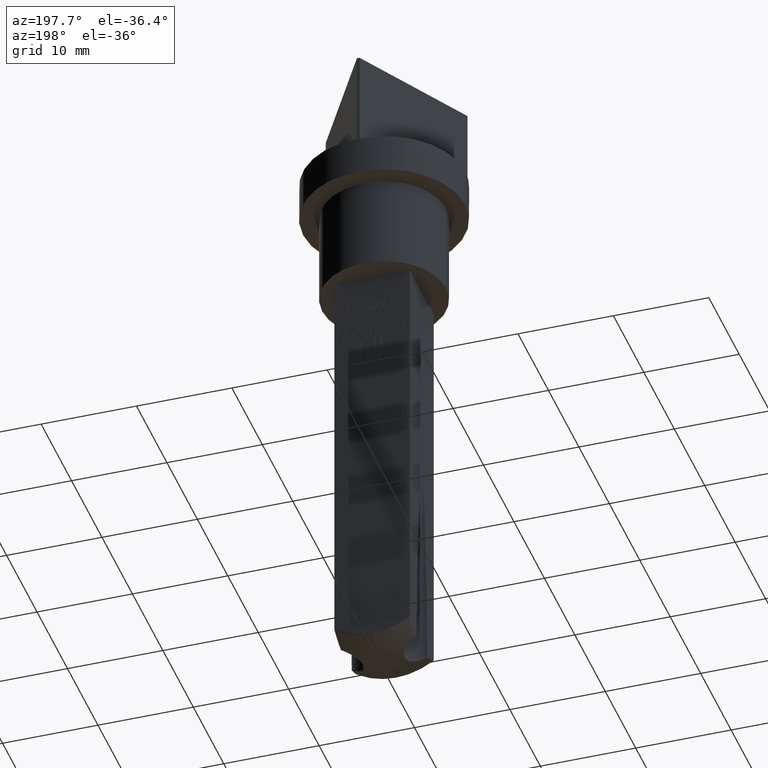
[diagram: clean part render]
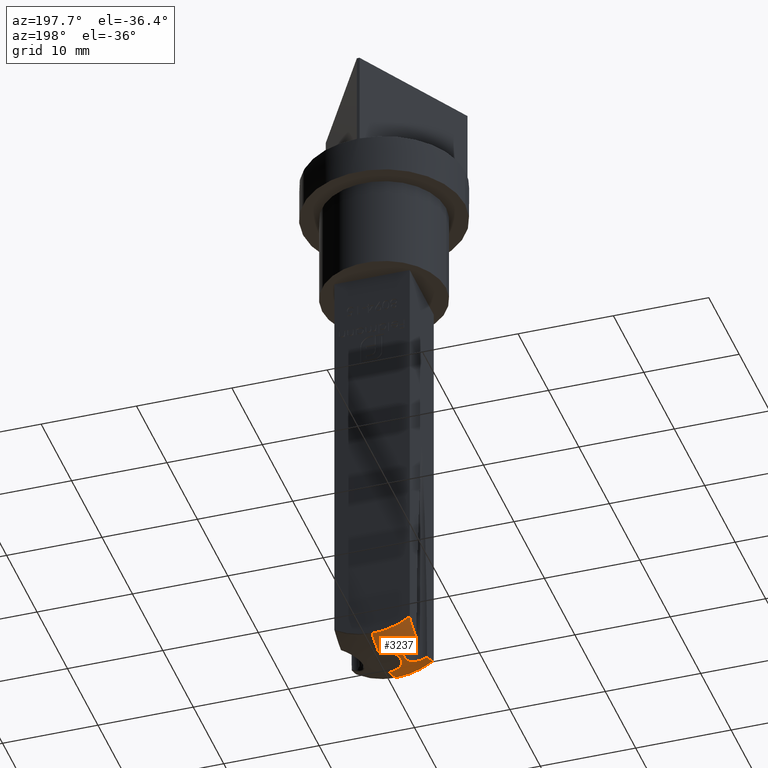
[diagram: same view with one face highlighted and labeled with its STEP entity id]
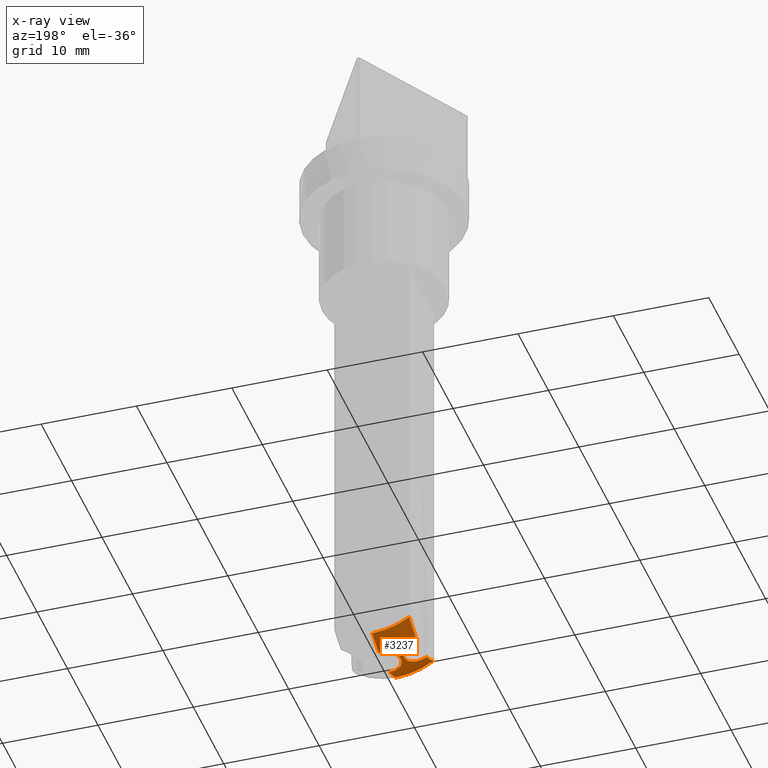
[diagram: x-ray of the same camera — body ghosted, the highlighted face saturated]
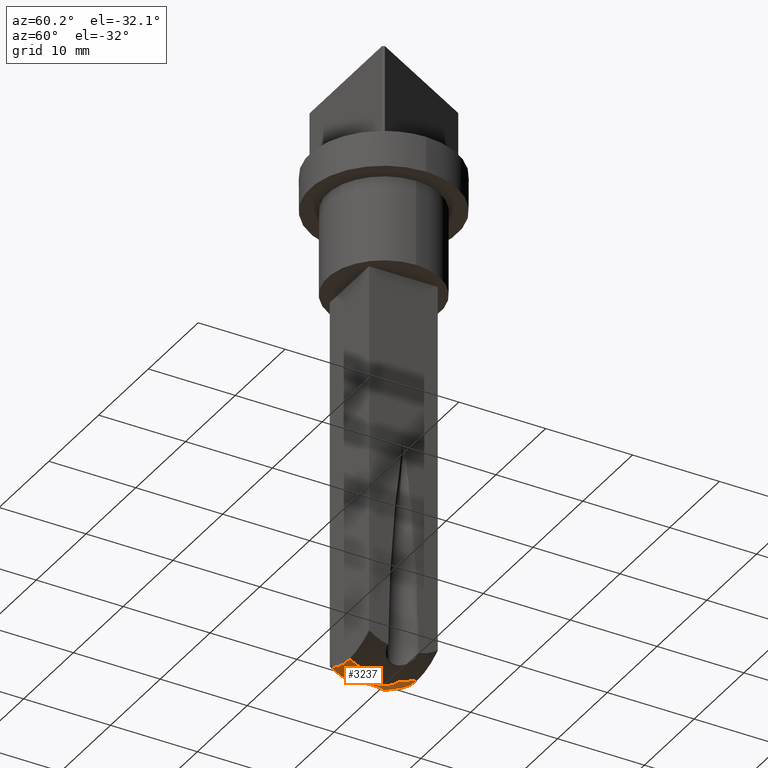
[diagram: same view with one face highlighted and labeled with its STEP entity id]
A machine part, auxiliary view. The second image highlights one B-rep face of the part: STEP entity #3237.
The next image is the same camera in x-ray: the body ghosted, the highlighted face saturated — about 0% of this face is hidden behind the body in this view.
A second angle (auxiliary view) of the same face is appended — the face is thin or edge-on in the first view.
In plain terms, the highlighted spherical surface has radius 8 mm.
Its self-contained STEP definition (entity closure, byte-faithful):
#144 = DIRECTION ( 'NONE',  ( -1.241626346761070479E-16, 1.000000000000000000, 0.000000000000000000 ) ) ;
#455 = ORIENTED_EDGE ( 'NONE', *, *, #6666, .T. ) ;
#607 = CARTESIAN_POINT ( 'NONE',  ( -2.513642876631040579, -1.164127101772625794, -51.70313504104576197 ) ) ;
#912 = CARTESIAN_POINT ( 'NONE',  ( 0.000000000000000000, 1.760904488448767902, -51.99754743668351153 ) ) ;
#1030 = DIRECTION ( 'NONE',  ( 1.000000000000000000, 0.000000000000000000, 0.000000000000000000 ) ) ;
#1356 = CARTESIAN_POINT ( 'NONE',  ( -1.760904488448767680, 0.000000000000000000, -51.99754743668351153 ) ) ;
#1362 = AXIS2_PLACEMENT_3D ( 'NONE', #9129, #11348, #13350 ) ;
#1390 = CARTESIAN_POINT ( 'NONE',  ( -3.898734177215191110, 3.898734177215191110, -49.99028108649361002 ) ) ;
#1395 = DIRECTION ( 'NONE',  ( -1.000000000000000000, 0.000000000000000000, 0.000000000000000000 ) ) ;
#1505 = VERTEX_POINT ( 'NONE', #12048 ) ;
#1552 = CARTESIAN_POINT ( 'NONE',  ( 0.000000000000000000, 0.000000000000000000, -44.19375250200199190 ) ) ;
#1621 = CARTESIAN_POINT ( 'NONE',  ( -2.857054322347836628, 1.502190820968747564, -51.51805132428643219 ) ) ;
#1914 = ORIENTED_EDGE ( 'NONE', *, *, #6862, .F. ) ;
#2019 = EDGE_CURVE ( 'NONE', #3425, #1505, #13856, .T. ) ;
#2315 = AXIS2_PLACEMENT_3D ( 'NONE', #11450, #1395, #5950 ) ;
#2382 = EDGE_CURVE ( 'NONE', #6340, #4012, #11135, .T. ) ;
#2390 = CARTESIAN_POINT ( 'NONE',  ( 0.000000000000000000, 0.000000000000000000, -51.99754743668351153 ) ) ;
#2484 = SPHERICAL_SURFACE ( 'NONE', #2315, 8.000000000000000000 ) ;
#2502 = EDGE_CURVE ( 'NONE', #1505, #4926, #6471, .T. ) ;
#2751 = CARTESIAN_POINT ( 'NONE',  ( -2.328785630369371251, 0.8552987283188163703, -51.80042948224190980 ) ) ;
#3041 = ORIENTED_EDGE ( 'NONE', *, *, #6597, .T. ) ;
#3237 = ADVANCED_FACE ( 'NONE', ( #8887 ), #2484, .T. ) ;
#3425 = VERTEX_POINT ( 'NONE', #12120 ) ;
#3757 = CARTESIAN_POINT ( 'NONE',  ( -3.464883654189579332, 1.807449611628388242, -51.17894453782693631 ) ) ;
#3808 = CARTESIAN_POINT ( 'NONE',  ( -3.898734177215189334, -4.280522597347031303E-16, -44.19375250200199190 ) ) ;
#3906 = CARTESIAN_POINT ( 'NONE',  ( -2.226685290934171224, -0.6163339328914356763, -51.85391123496365395 ) ) ;
#4012 = VERTEX_POINT ( 'NONE', #8293 ) ;
#4252 = ORIENTED_EDGE ( 'NONE', *, *, #12538, .T. ) ;
#4279 = CARTESIAN_POINT ( 'NONE',  ( -3.462106613809686095, -1.806592903148920071, -51.18052838657784065 ) ) ;
#4708 = ORIENTED_EDGE ( 'NONE', *, *, #2019, .T. ) ;
#4859 = CARTESIAN_POINT ( 'NONE',  ( -2.602820174154433452, 1.252921326746067932, -51.65509874550208025 ) ) ;
#4926 = VERTEX_POINT ( 'NONE', #8988 ) ;
#5053 = CARTESIAN_POINT ( 'NONE',  ( -3.048140487968401757, 1.628118796686928160, -51.41339718595150998 ) ) ;
#5339 = AXIS2_PLACEMENT_3D ( 'NONE', #6809, #10051, #144 ) ;
#5904 = CIRCLE ( 'NONE', #10589, 6.985690503838127619 ) ;
#5950 = DIRECTION ( 'NONE',  ( 0.000000000000000000, 1.000000000000000000, 0.000000000000000000 ) ) ;
#6076 = CARTESIAN_POINT ( 'NONE',  ( -3.679317725592027966, 1.856048930844126366, -51.05545154406535602 ) ) ;
#6128 = CARTESIAN_POINT ( 'NONE',  ( -2.127567062258586272, 0.2618703335248981356, -51.90544013229916942 ) ) ;
#6276 = CARTESIAN_POINT ( 'NONE',  ( -3.898734177215190222, -1.867170734593343484, -50.92528615068059850 ) ) ;
#6340 = VERTEX_POINT ( 'NONE', #1390 ) ;
#6471 = CIRCLE ( 'NONE', #1362, 6.985690503838126730 ) ;
#6520 = CARTESIAN_POINT ( 'NONE',  ( 0.000000000000000000, 0.000000000000000000, -44.19375250200199190 ) ) ;
#6597 = EDGE_CURVE ( 'NONE', #10131, #3425, #11775, .T. ) ;
#6660 = EDGE_CURVE ( 'NONE', #9984, #11503, #13146, .T. ) ;
#6666 = EDGE_CURVE ( 'NONE', #4926, #9984, #5904, .T. ) ;
#6809 = CARTESIAN_POINT ( 'NONE',  ( -3.898734177215188890, -4.280522597347030810E-16, -44.19375250200199190 ) ) ;
#6832 = DIRECTION ( 'NONE',  ( 1.000000000000000000, 0.000000000000000000, 0.000000000000000000 ) ) ;
#6862 = EDGE_CURVE ( 'NONE', #9159, #4012, #14171, .T. ) ;
#6871 = ORIENTED_EDGE ( 'NONE', *, *, #6660, .T. ) ;
#6882 = DIRECTION ( 'NONE',  ( 0.000000000000000000, 0.000000000000000000, 1.000000000000000000 ) ) ;
#7181 = CARTESIAN_POINT ( 'NONE',  ( -2.388202015132241840, 0.9619150511320266883, -51.76917486629923104 ) ) ;
#7188 = CARTESIAN_POINT ( 'NONE',  ( -3.150171057693793575, -1.671852031501807723, -51.35598556426182171 ) ) ;
#7351 = ORIENTED_EDGE ( 'NONE', *, *, #12733, .T. ) ;
#7650 = CARTESIAN_POINT ( 'NONE',  ( -2.858648834088251434, -1.488995507350875824, -51.51680427132578899 ) ) ;
#7656 = DIRECTION ( 'NONE',  ( -0.000000000000000000, -1.000000000000000000, -0.000000000000000000 ) ) ;
#7754 = DIRECTION ( 'NONE',  ( 0.000000000000000000, 0.000000000000000000, 1.000000000000000000 ) ) ;
#8121 = CARTESIAN_POINT ( 'NONE',  ( -3.898734177215190666, 1.867170734593350145, -50.92528615068059850 ) ) ;
#8261 = CARTESIAN_POINT ( 'NONE',  ( -2.138746943988190541, -0.2469376868379255796, -51.89965124968365728 ) ) ;
#8293 = CARTESIAN_POINT ( 'NONE',  ( 0.000000000000000000, 3.898734177215189778, -51.17944300584012041 ) ) ;
#8355 = CARTESIAN_POINT ( 'NONE',  ( -2.371893988486863059, -0.9589285037935949552, -51.77785969371882402 ) ) ;
#8362 = CIRCLE ( 'NONE', #13533, 1.760904488448767902 ) ;
#8699 = CIRCLE ( 'NONE', #5339, 6.985690503838126730 ) ;
#8744 = DIRECTION ( 'NONE',  ( 0.000000000000000000, 0.000000000000000000, -1.000000000000000000 ) ) ;
#8767 = CARTESIAN_POINT ( 'NONE',  ( 0.000000000000000000, 0.000000000000000000, -51.99754743668351153 ) ) ;
#8887 = FACE_OUTER_BOUND ( 'NONE', #11950, .T. ) ;
#8988 = CARTESIAN_POINT ( 'NONE',  ( -3.898734177215190222, -3.898734177215189334, -49.99028108649361002 ) ) ;
#9129 = CARTESIAN_POINT ( 'NONE',  ( 0.000000000000000000, -3.898734177215188001, -44.19375250200199190 ) ) ;
#9159 = VERTEX_POINT ( 'NONE', #912 ) ;
#9301 = DIRECTION ( 'NONE',  ( -1.000000000000000000, 1.224646799147353207E-16, 0.000000000000000000 ) ) ;
#9362 = CARTESIAN_POINT ( 'NONE',  ( -2.766480473709147070, -1.414033024937349836, -51.56689301520776780 ) ) ;
#9378 = AXIS2_PLACEMENT_3D ( 'NONE', #2390, #6882, #6832 ) ;
#9461 = CARTESIAN_POINT ( 'NONE',  ( -2.188706809074965065, -0.4943208755018299039, -51.87368099106187458 ) ) ;
#9984 = VERTEX_POINT ( 'NONE', #12669 ) ;
#10051 = DIRECTION ( 'NONE',  ( 1.000000000000000000, 1.097926250618232396E-16, 0.000000000000000000 ) ) ;
#10131 = VERTEX_POINT ( 'NONE', #1356 ) ;
#10481 = DIRECTION ( 'NONE',  ( 1.000000000000000000, 1.097926250618232396E-16, 0.000000000000000000 ) ) ;
#10589 = AXIS2_PLACEMENT_3D ( 'NONE', #3808, #10481, #12763 ) ;
#11116 = CARTESIAN_POINT ( 'NONE',  ( 0.000000000000000000, 3.898734177215189334, -44.19375250200199190 ) ) ;
#11135 = CIRCLE ( 'NONE', #11470, 6.985690503838126730 ) ;
#11348 = DIRECTION ( 'NONE',  ( 0.000000000000000000, 1.000000000000000000, 0.000000000000000000 ) ) ;
#11450 = CARTESIAN_POINT ( 'NONE',  ( 0.000000000000000000, 0.000000000000000000, -44.19375250200199190 ) ) ;
#11470 = AXIS2_PLACEMENT_3D ( 'NONE', #11116, #7656, #12216 ) ;
#11503 = VERTEX_POINT ( 'NONE', #8121 ) ;
#11534 = CARTESIAN_POINT ( 'NONE',  ( -3.898734177215190666, 1.867170734593350145, -50.92528615068059850 ) ) ;
#11626 = CARTESIAN_POINT ( 'NONE',  ( -2.524757507187840311, 1.160313752101176599, -51.69675756362592267 ) ) ;
#11658 = DIRECTION ( 'NONE',  ( -1.224646799147353207E-16, -1.000000000000000000, 0.000000000000000000 ) ) ;
#11738 = AXIS2_PLACEMENT_3D ( 'NONE', #1552, #9301, #11658 ) ;
#11775 = CIRCLE ( 'NONE', #9378, 1.760904488448767902 ) ;
#11821 = CARTESIAN_POINT ( 'NONE',  ( -3.678958428216424714, -1.856030718741624508, -51.05566469163881749 ) ) ;
#11950 = EDGE_LOOP ( 'NONE', ( #4252, #3041, #4708, #13085, #455, #6871, #7351, #12982, #1914 ) ) ;
#12048 = CARTESIAN_POINT ( 'NONE',  ( -4.774572330852970025E-16, -3.898734177215188001, -51.17944300584012041 ) ) ;
#12120 = CARTESIAN_POINT ( 'NONE',  ( -4.465824982899612627E-16, -1.760904488448767902, -51.99754743668351153 ) ) ;
#12133 = DIRECTION ( 'NONE',  ( 1.000000000000000000, 0.000000000000000000, 0.000000000000000000 ) ) ;
#12216 = DIRECTION ( 'NONE',  ( 0.000000000000000000, 0.000000000000000000, -1.000000000000000000 ) ) ;
#12538 = EDGE_CURVE ( 'NONE', #9159, #10131, #8362, .T. ) ;
#12669 = CARTESIAN_POINT ( 'NONE',  ( -3.898734177215190222, -1.867170734593343484, -50.92528615068059850 ) ) ;
#12680 = CARTESIAN_POINT ( 'NONE',  ( -2.126248505399627842, -0.1212697273930161551, -51.90612385537450280 ) ) ;
#12733 = EDGE_CURVE ( 'NONE', #11503, #6340, #8699, .T. ) ;
#12763 = DIRECTION ( 'NONE',  ( -1.241626346761070479E-16, 1.000000000000000000, 0.000000000000000000 ) ) ;
#12982 = ORIENTED_EDGE ( 'NONE', *, *, #2382, .T. ) ;
#13062 = AXIS2_PLACEMENT_3D ( 'NONE', #6520, #1030, #8744 ) ;
#13085 = ORIENTED_EDGE ( 'NONE', *, *, #2502, .T. ) ;
#13146 = B_SPLINE_CURVE_WITH_KNOTS ( 'NONE', 3,
 ( #6276, #11821, #4279, #7188, #13589, #7650, #9362, #607, #8355, #3906, #9461, #8261, #12680, #6128, #13858, #2751, #7181, #11626, #4859, #1621, #5053, #3757, #6076, #11534 ),
 .UNSPECIFIED., .F., .F.,
 ( 4, 2, 2, 2, 2, 2, 2, 2, 2, 2, 2, 4 ),
 ( 1.124229303124644401E-17, 0.0007595803590064477678, 0.001139370538509661352, 0.001519160718012874936, 0.002278741077019302754, 0.002658531256522518940, 0.003038321436025735126, 0.003797901795032166631, 0.004177691974535384552, 0.004557482154038602906, 0.005317062513045039615, 0.006076642872051476324 ),
 .UNSPECIFIED. ) ;
#13350 = DIRECTION ( 'NONE',  ( 0.000000000000000000, 0.000000000000000000, 1.000000000000000000 ) ) ;
#13533 = AXIS2_PLACEMENT_3D ( 'NONE', #8767, #7754, #12133 ) ;
#13589 = CARTESIAN_POINT ( 'NONE',  ( -3.050156271661522034, -1.617502458060501969, -51.41152920333833265 ) ) ;
#13856 = CIRCLE ( 'NONE', #11738, 8.000000000000000000 ) ;
#13858 = CARTESIAN_POINT ( 'NONE',  ( -2.180382111232721076, 0.5106978637003756205, -51.87817661675449443 ) ) ;
#14171 = CIRCLE ( 'NONE', #13062, 8.000000000000000000 ) ;